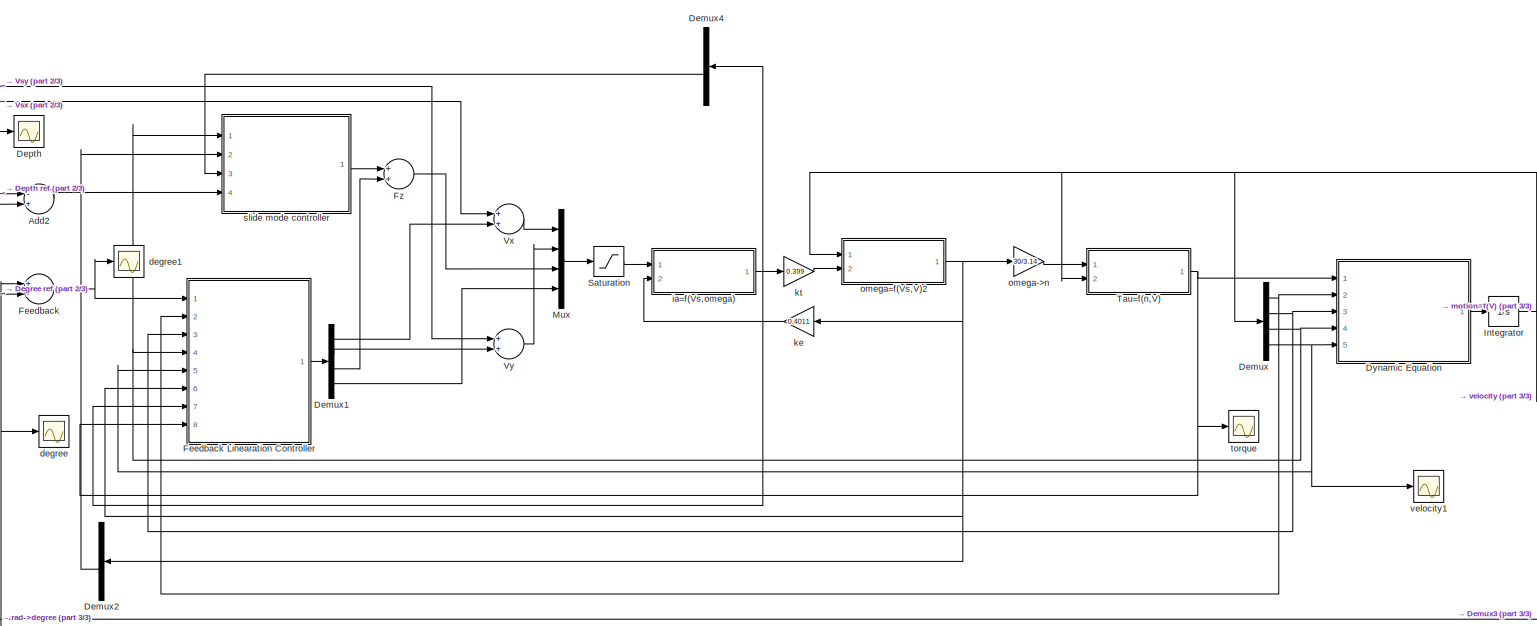
[diagram: root canvas - part 1/3, most of the canvas]
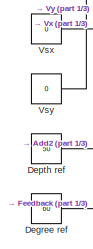
[diagram: root canvas - part 2/3, middle left region]
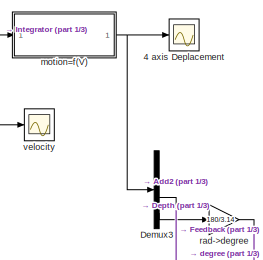
[diagram: root canvas - part 3/3, middle right region]
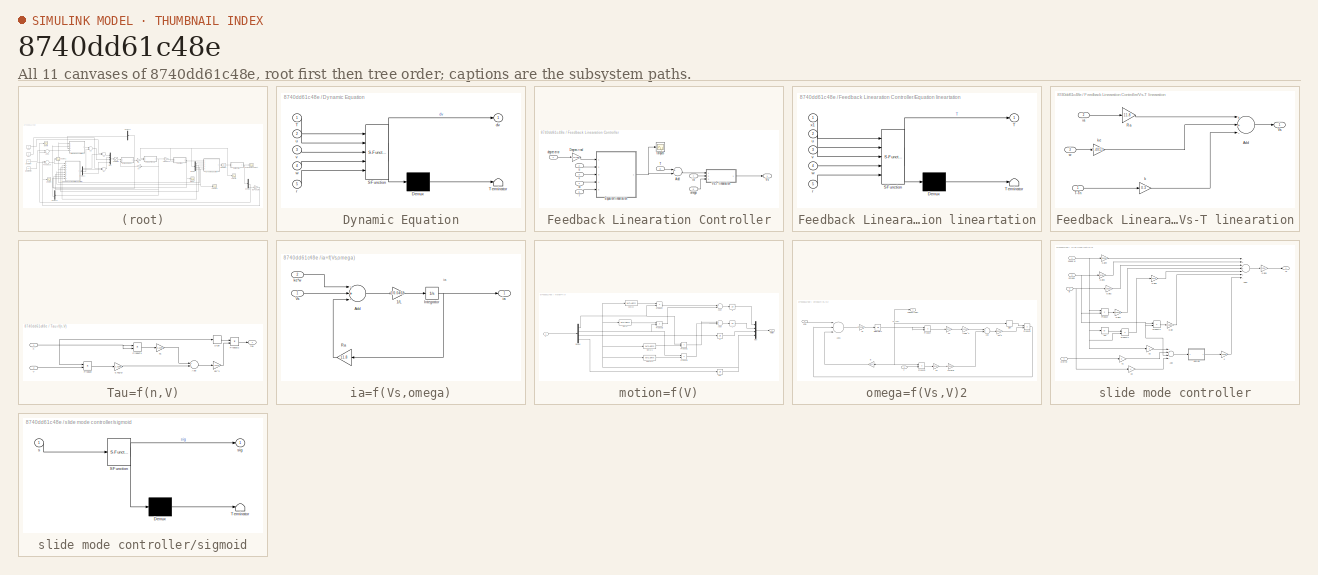
[diagram: thumbnail index - all 11 canvases of the model, root first then tree order]
MODEL slx_8740dd61c48e
KIND model
CONFIG AbsTol = auto
CONFIG FixedStep = auto
CONFIG MaxStep = auto
CONFIG MinStep = auto
CONFIG RelTol = 1e-3
CONFIG SampleTimeConstraint = Unconstrained
CONFIG Solver = VariableStepAuto
CONFIG SolverMode = Auto
CONFIG SolverName = VariableStepAuto
CONFIG StartTime = 0.0
CONFIG StopTime = 100
BLOCK [Scope] 4 axis Deplacement 
  Ports = [1]
  ScopeSpecificationString = Simulink.scopes.TimeScopeBlockCfg('CurrentConfiguration', extmgr.ConfigurationSet(extmgr.Configuration('Core','General UI',true),extmgr.Configuration('Core','Source UI',true),extmgr.Configuration('Sources','WiredSimulink',true,'DataLoggingVariableName','ScopeData2'),extmgr.Configuration('Visuals','Time Domain',true,'SerializedDisplays',{struct('MinYLimReal','-6.26643','MaxYLimReal','56.21813','YLa...<+1451ch>
BLOCK [Sum] Add2
  InputSameDT = off
  Inputs = -+
  OutDataTypeStr = Inherit: Inherit via internal rule
  Ports = [2, 1]
  SaturateOnIntegerOverflow = off
BLOCK [Constant] Degree ref
  Value = 60
BLOCK [Demux] Demux
  DisplayOption = bar
  Ports = [1, 4]
BLOCK [Demux] Demux1
  DisplayOption = bar
  Ports = [1, 4]
BLOCK [Demux] Demux2
  DisplayOption = bar
  Ports = [1, 4]
BLOCK [Demux] Demux3
  DisplayOption = bar
  Ports = [1, 4]
BLOCK [Demux] Demux4
  DisplayOption = bar
  Ports = [1, 4]
BLOCK [Scope] Depth
  Ports = [1]
  ScopeSpecificationString = Simulink.scopes.TimeScopeBlockCfg('CurrentConfiguration', extmgr.ConfigurationSet(extmgr.Configuration('Core','General UI',true),extmgr.Configuration('Core','Source UI',true),extmgr.Configuration('Sources','WiredSimulink',true,'DataLoggingVariableName','ScopeDataDepth','DataLogging',true,'DataLoggingSaveFormat','Array'),extmgr.Configuration('Visuals','Time Domain',true,'SerializedDisplays',{struct...<+1453ch>
BLOCK [Constant] Depth ref
  Value = 50
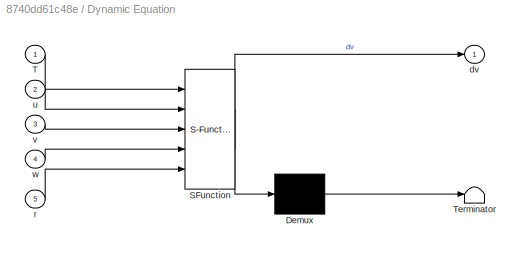
BLOCK [SubSystem] Dynamic Equation
  ErrorFcn = Stateflow.Translate.translate
  PermitHierarchicalResolution = ExplicitOnly
  Ports = [5, 1]
  RequestExecContextInheritance = off
  SFBlockType = MATLAB Function
  TreatAsAtomicUnit = on
  Variant = off
BLOCK [Demux] Dynamic Equation/ Demux 
  Outputs = 1
  Ports = [1, 1]
BLOCK [S-Function] Dynamic Equation/ SFunction 
  EnableBusSupport = on
  FunctionName = sf_sfun
  PortCounts = [5 2]
  Ports = [5, 2]
  SFunctionDeploymentMode = off
  Tag = Stateflow S-Function UUV_System 1
BLOCK [Terminator] Dynamic Equation/ Terminator 
BLOCK [Inport] Dynamic Equation/T
  IconDisplay = Port number
BLOCK [Outport] Dynamic Equation/dv
  IconDisplay = Port number
BLOCK [Inport] Dynamic Equation/r
  IconDisplay = Port number
  Port = 5
BLOCK [Inport] Dynamic Equation/u
  IconDisplay = Port number
  Port = 2
BLOCK [Inport] Dynamic Equation/v
  IconDisplay = Port number
  Port = 3
BLOCK [Inport] Dynamic Equation/w
  IconDisplay = Port number
  Port = 4
BLOCK [Sum] Feedback
  InputSameDT = off
  Inputs = +-
  OutDataTypeStr = Inherit: Inherit via internal rule
  Ports = [2, 1]
  SaturateOnIntegerOverflow = off
BLOCK [SubSystem] Feedback Linearation Controller
  Ports = [8, 1]
  RequestExecContextInheritance = off
  Variant = off
BLOCK [Sum] Feedback Linearation Controller/Add
  InputSameDT = off
  Inputs = +-
  OutDataTypeStr = Inherit: Inherit via internal rule
  Ports = [2, 1]
  SaturateOnIntegerOverflow = off
BLOCK [Gain] Feedback Linearation Controller/Degree->rad
  Gain = 3.14/180
  OutDataTypeStr = Inherit: Inherit via internal rule
  ParamDataTypeStr = Inherit: Inherit via internal rule
  SaturateOnIntegerOverflow = off
BLOCK [SubSystem] Feedback Linearation Controller/Equation lineartation
  ErrorFcn = Stateflow.Translate.translate
  PermitHierarchicalResolution = ExplicitOnly
  Ports = [5, 1]
  RequestExecContextInheritance = off
  SFBlockType = MATLAB Function
  TreatAsAtomicUnit = on
  Variant = off
BLOCK [Demux] Feedback Linearation Controller/Equation lineartation/ Demux 
  Outputs = 1
  Ports = [1, 1]
BLOCK [S-Function] Feedback Linearation Controller/Equation lineartation/ SFunction 
  EnableBusSupport = on
  FunctionName = sf_sfun
  PortCounts = [5 2]
  Ports = [5, 2]
  SFunctionDeploymentMode = off
  Tag = Stateflow S-Function UUV_System 3
BLOCK [Terminator] Feedback Linearation Controller/Equation lineartation/ Terminator 
BLOCK [Outport] Feedback Linearation Controller/Equation lineartation/T
  IconDisplay = Port number
BLOCK [Inport] Feedback Linearation Controller/Equation lineartation/r
  IconDisplay = Port number
  Port = 5
BLOCK [Inport] Feedback Linearation Controller/Equation lineartation/u
  IconDisplay = Port number
  Port = 2
BLOCK [Inport] Feedback Linearation Controller/Equation lineartation/v
  IconDisplay = Port number
  Port = 3
BLOCK [Inport] Feedback Linearation Controller/Equation lineartation/w
  IconDisplay = Port number
  Port = 4
BLOCK [Inport] Feedback Linearation Controller/Equation lineartation/x1
  IconDisplay = Port number
BLOCK [Inport] Feedback Linearation Controller/T
  IconDisplay = Port number
  Port = 8
BLOCK [Outport] Feedback Linearation Controller/Vs
  IconDisplay = Port number
BLOCK [SubSystem] Feedback Linearation Controller/Vs-T linearation
  Ports = [3, 1]
  RequestExecContextInheritance = off
  Variant = off
BLOCK [Sum] Feedback Linearation Controller/Vs-T linearation/Add
  InputSameDT = off
  Inputs = ++-
  OutDataTypeStr = Inherit: Inherit via internal rule
  Ports = [3, 1]
  SaturateOnIntegerOverflow = off
BLOCK [Gain] Feedback Linearation Controller/Vs-T linearation/Ra
  Gain = 11.8
  OutDataTypeStr = Inherit: Inherit via internal rule
  ParamDataTypeStr = Inherit: Inherit via internal rule
  SaturateOnIntegerOverflow = off
BLOCK [Inport] Feedback Linearation Controller/Vs-T linearation/T-Tn
  IconDisplay = Port number
BLOCK [Outport] Feedback Linearation Controller/Vs-T linearation/Vs
  IconDisplay = Port number
BLOCK [Inport] Feedback Linearation Controller/Vs-T linearation/ia
  IconDisplay = Port number
  Port = 2
BLOCK [Gain] Feedback Linearation Controller/Vs-T linearation/k
  Gain = 0.3
  OutDataTypeStr = Inherit: Inherit via internal rule
  ParamDataTypeStr = Inherit: Inherit via internal rule
  SaturateOnIntegerOverflow = off
BLOCK [Gain] Feedback Linearation Controller/Vs-T linearation/ke
  Gain = 0.4011
  OutDataTypeStr = Inherit: Inherit via internal rule
  ParamDataTypeStr = Inherit: Inherit via internal rule
  SaturateOnIntegerOverflow = off
BLOCK [Inport] Feedback Linearation Controller/Vs-T linearation/w
  IconDisplay = Port number
  Port = 3
BLOCK [Inport] Feedback Linearation Controller/degree error
  IconDisplay = Port number
BLOCK [Inport] Feedback Linearation Controller/ia
  IconDisplay = Port number
  Port = 7
BLOCK [Inport] Feedback Linearation Controller/omega
  IconDisplay = Port number
  Port = 6
BLOCK [Inport] Feedback Linearation Controller/r
  IconDisplay = Port number
  Port = 5
BLOCK [Scope] Feedback Linearation Controller/torque3
  Ports = [1]
  ScopeSpecificationString = Simulink.scopes.TimeScopeBlockCfg('CurrentConfiguration', extmgr.ConfigurationSet(extmgr.Configuration('Core','General UI',true),extmgr.Configuration('Core','Source UI',true),extmgr.Configuration('Sources','WiredSimulink',true,'DataLoggingVariableName','ScopeData2'),extmgr.Configuration('Visuals','Time Domain',true,'SerializedDisplays',{struct('MinYLimReal','-1.60366','MaxYLimReal','9.58528','YLab...<+1506ch>
BLOCK [Inport] Feedback Linearation Controller/u
  IconDisplay = Port number
  Port = 2
BLOCK [Inport] Feedback Linearation Controller/v
  IconDisplay = Port number
  Port = 3
BLOCK [Inport] Feedback Linearation Controller/w
  IconDisplay = Port number
  Port = 4
BLOCK [Sum] Fz
  InputSameDT = off
  OutDataTypeStr = Inherit: Inherit via internal rule
  Ports = [2, 1]
  SaturateOnIntegerOverflow = off
BLOCK [Integrator] Integrator
  Ports = [1, 1]
BLOCK [Mux] Mux
  DisplayOption = bar
  Ports = [4, 1]
BLOCK [Saturate] Saturation
  InputPortMap = u0
  LowerLimit = -100
  Ports = [1, 1]
  UpperLimit = 100
BLOCK [SubSystem] Tau=f(n,V)
  Ports = [2, 1]
  RequestExecContextInheritance = off
  Variant = off
BLOCK [Gain] Tau=f(n,V)/0.7a2//D
  Gain = -1.0366
  OutDataTypeStr = Inherit: Inherit via internal rule
  ParamDataTypeStr = Inherit: Inherit via internal rule
  SaturateOnIntegerOverflow = off
BLOCK [Sum] Tau=f(n,V)/Add
  InputSameDT = off
  OutDataTypeStr = Inherit: Inherit via internal rule
  Ports = [2, 1]
  SaturateOnIntegerOverflow = off
BLOCK [Product] Tau=f(n,V)/Product
  InputSameDT = off
  OutDataTypeStr = Inherit: Inherit via internal rule
  Ports = [2, 1]
  RndMeth = Floor
  SaturateOnIntegerOverflow = off
BLOCK [Product] Tau=f(n,V)/Product1
  InputSameDT = off
  OutDataTypeStr = Inherit: Inherit via internal rule
  Ports = [2, 1]
  RndMeth = Floor
  SaturateOnIntegerOverflow = off
BLOCK [Product] Tau=f(n,V)/Product2
  InputSameDT = off
  OutDataTypeStr = Inherit: Inherit via internal rule
  Ports = [2, 1]
  RndMeth = Floor
  SaturateOnIntegerOverflow = off
BLOCK [Signum] Tau=f(n,V)/Sign
BLOCK [Inport] Tau=f(n,V)/V
  IconDisplay = Port number
  Port = 2
BLOCK [Gain] Tau=f(n,V)/a1
  Gain = 0.2299
  OutDataTypeStr = Inherit: Inherit via internal rule
  ParamDataTypeStr = Inherit: Inherit via internal rule
  SaturateOnIntegerOverflow = off
BLOCK [Inport] Tau=f(n,V)/n
  IconDisplay = Port number
BLOCK [Gain] Tau=f(n,V)/pD^4
  Gain = 0.5471
  OutDataTypeStr = Inherit: Inherit via internal rule
  ParamDataTypeStr = Inherit: Inherit via internal rule
  SaturateOnIntegerOverflow = off
BLOCK [Outport] Tau=f(n,V)/tau
  IconDisplay = Port number
BLOCK [Constant] Vsx
  Value = 0
BLOCK [Constant] Vsy
  Value = 0
BLOCK [Sum] Vx
  InputSameDT = off
  OutDataTypeStr = Inherit: Inherit via internal rule
  Ports = [2, 1]
  SaturateOnIntegerOverflow = off
BLOCK [Sum] Vy
  InputSameDT = off
  OutDataTypeStr = Inherit: Inherit via internal rule
  Ports = [2, 1]
  SaturateOnIntegerOverflow = off
BLOCK [Scope] degree
  Ports = [1]
  ScopeSpecificationString = Simulink.scopes.TimeScopeBlockCfg('CurrentConfiguration', extmgr.ConfigurationSet(extmgr.Configuration('Core','General UI',true),extmgr.Configuration('Core','Source UI',true),extmgr.Configuration('Sources','WiredSimulink',true,'DataLoggingVariableName','ScopeData1','DataLogging',true,'DataLoggingSaveFormat','Array'),extmgr.Configuration('Visuals','Time Domain',true,'SerializedDisplays',{struct('Mi...<+1454ch>
BLOCK [Scope] degree1
  Ports = [1]
  ScopeSpecificationString = Simulink.scopes.TimeScopeBlockCfg('CurrentConfiguration', extmgr.ConfigurationSet(extmgr.Configuration('Core','General UI',true),extmgr.Configuration('Core','Source UI',true),extmgr.Configuration('Sources','WiredSimulink',true,'DataLoggingVariableName','x1','DataLogging',true,'DataLoggingSaveFormat','Array'),extmgr.Configuration('Visuals','Time Domain',true,'SerializedDisplays',{struct('MinYLimRea...<+1435ch>
BLOCK [SubSystem] ia=f(Vs,omega)
  Ports = [2, 1]
  RequestExecContextInheritance = off
  Variant = off
BLOCK [Gain] ia=f(Vs,omega)/1//L
  Gain = 1/0.0468
  OutDataTypeStr = Inherit: Inherit via internal rule
  ParamDataTypeStr = Inherit: Inherit via internal rule
  SaturateOnIntegerOverflow = off
BLOCK [Sum] ia=f(Vs,omega)/Add
  InputSameDT = off
  Inputs = -+-
  OutDataTypeStr = Inherit: Inherit via internal rule
  Ports = [3, 1]
  SaturateOnIntegerOverflow = off
BLOCK [Integrator] ia=f(Vs,omega)/Integrator
  Ports = [1, 1]
BLOCK [Gain] ia=f(Vs,omega)/Ra
  Gain = 11.8
  OutDataTypeStr = Inherit: Inherit via internal rule
  ParamDataTypeStr = Inherit: Inherit via internal rule
  SaturateOnIntegerOverflow = off
BLOCK [Inport] ia=f(Vs,omega)/Vs
  IconDisplay = Port number
BLOCK [Outport] ia=f(Vs,omega)/ia
  IconDisplay = Port number
BLOCK [Inport] ia=f(Vs,omega)/ke*w
  IconDisplay = Port number
  Port = 2
BLOCK [Gain] ke
  Gain = 0.4011
  OutDataTypeStr = Inherit: Inherit via internal rule
  ParamDataTypeStr = Inherit: Inherit via internal rule
  SaturateOnIntegerOverflow = off
BLOCK [Gain] kt
  Gain = 0.399
  OutDataTypeStr = Inherit: Inherit via internal rule
  ParamDataTypeStr = Inherit: Inherit via internal rule
  SaturateOnIntegerOverflow = off
BLOCK [SubSystem] motion=f(V)
  Ports = [1, 1]
  RequestExecContextInheritance = off
  Variant = off
BLOCK [Demux] motion=f(V)/Demux
  DisplayOption = bar
  Ports = [1, 4]
BLOCK [Mux] motion=f(V)/Mux
  DisplayOption = bar
  Ports = [4, 1]
BLOCK [Product] motion=f(V)/Product
  InputSameDT = off
  OutDataTypeStr = Inherit: Inherit via internal rule
  Ports = [2, 1]
  RndMeth = Floor
  SaturateOnIntegerOverflow = off
BLOCK [Product] motion=f(V)/Product1
  InputSameDT = off
  OutDataTypeStr = Inherit: Inherit via internal rule
  Ports = [2, 1]
  RndMeth = Floor
  SaturateOnIntegerOverflow = off
BLOCK [Product] motion=f(V)/Product2
  InputSameDT = off
  OutDataTypeStr = Inherit: Inherit via internal rule
  Ports = [2, 1]
  RndMeth = Floor
  SaturateOnIntegerOverflow = off
BLOCK [Product] motion=f(V)/Product3
  InputSameDT = off
  OutDataTypeStr = Inherit: Inherit via internal rule
  Ports = [2, 1]
  RndMeth = Floor
  SaturateOnIntegerOverflow = off
BLOCK [Inport] motion=f(V)/V
  IconDisplay = Port number
BLOCK [MATLABFcn] motion=f(V)/cos(u)
  MATLABFcn = cos(u)
  Ports = [1, 1]
BLOCK [MATLABFcn] motion=f(V)/cos(u)1
  MATLABFcn = cos(u)
  Ports = [1, 1]
BLOCK [Outport] motion=f(V)/motion
  IconDisplay = Port number
BLOCK [Integrator] motion=f(V)/phi
  Ports = [1, 1]
BLOCK [MATLABFcn] motion=f(V)/sin(u)
  MATLABFcn = sin(u)
  Ports = [1, 1]
BLOCK [MATLABFcn] motion=f(V)/sin(u)1
  MATLABFcn = sin(u)
  Ports = [1, 1]
BLOCK [Integrator] motion=f(V)/x
  Ports = [1, 1]
BLOCK [Sum] motion=f(V)/xdot
  InputSameDT = off
  Inputs = +-
  OutDataTypeStr = Inherit: Inherit via internal rule
  Ports = [2, 1]
  SaturateOnIntegerOverflow = off
BLOCK [Integrator] motion=f(V)/y
  Ports = [1, 1]
BLOCK [Sum] motion=f(V)/ydot
  InputSameDT = off
  OutDataTypeStr = Inherit: Inherit via internal rule
  Ports = [2, 1]
  SaturateOnIntegerOverflow = off
BLOCK [Integrator] motion=f(V)/z
  Ports = [1, 1]
BLOCK [Gain] omega->n
  Gain = 30/3.14
  OutDataTypeStr = Inherit: Inherit via internal rule
  ParamDataTypeStr = Inherit: Inherit via internal rule
  SaturateOnIntegerOverflow = off
BLOCK [SubSystem] omega=f(Vs,V)2
  Ports = [2, 1]
  RequestExecContextInheritance = off
  Variant = off
BLOCK [Gain] omega=f(Vs,V)2/(30//pi)^2
  Gain = 91.2235
  OutDataTypeStr = Inherit: Inherit via internal rule
  ParamDataTypeStr = Inherit: Inherit via internal rule
  SaturateOnIntegerOverflow = off
BLOCK [Gain] omega=f(Vs,V)2/1//J
  Gain = 10000/9.275
  OutDataTypeStr = Inherit: Inherit via internal rule
  ParamDataTypeStr = Inherit: Inherit via internal rule
  SaturateOnIntegerOverflow = off
BLOCK [Gain] omega=f(Vs,V)2/21//(pi*D)
  Gain = 43.9993
  OutDataTypeStr = Inherit: Inherit via internal rule
  ParamDataTypeStr = Inherit: Inherit via internal rule
  SaturateOnIntegerOverflow = off
BLOCK [Sum] omega=f(Vs,V)2/Add
  InputSameDT = off
  OutDataTypeStr = Inherit: Inherit via internal rule
  Ports = [2, 1]
  SaturateOnIntegerOverflow = off
BLOCK [Sum] omega=f(Vs,V)2/Add1
  InputSameDT = off
  Inputs = +--
  OutDataTypeStr = Inherit: Inherit via internal rule
  Ports = [3, 1]
  SaturateOnIntegerOverflow = off
BLOCK [Gain] omega=f(Vs,V)2/B
  Gain = 0.001
  OutDataTypeStr = Inherit: Inherit via internal rule
  ParamDataTypeStr = Inherit: Inherit via internal rule
  SaturateOnIntegerOverflow = off
BLOCK [Integrator] omega=f(Vs,V)2/Integrator1
  Ports = [1, 1]
BLOCK [Product] omega=f(Vs,V)2/Product
  InputSameDT = off
  OutDataTypeStr = Inherit: Inherit via internal rule
  Ports = [2, 1]
  RndMeth = Floor
  SaturateOnIntegerOverflow = off
BLOCK [Product] omega=f(Vs,V)2/Product1
  InputSameDT = off
  OutDataTypeStr = Inherit: Inherit via internal rule
  Ports = [2, 1]
  RndMeth = Floor
  SaturateOnIntegerOverflow = off
BLOCK [Product] omega=f(Vs,V)2/Product2
  InputSameDT = off
  OutDataTypeStr = Inherit: Inherit via internal rule
  Ports = [2, 1]
  RndMeth = Floor
  SaturateOnIntegerOverflow = off
BLOCK [Signum] omega=f(Vs,V)2/Sign
BLOCK [Inport] omega=f(Vs,V)2/V
  IconDisplay = Port number
BLOCK [Gain] omega=f(Vs,V)2/a3
  Gain = 0.0271
  OutDataTypeStr = Inherit: Inherit via internal rule
  ParamDataTypeStr = Inherit: Inherit via internal rule
  SaturateOnIntegerOverflow = off
BLOCK [Gain] omega=f(Vs,V)2/a4
  Gain = -0.0157
  OutDataTypeStr = Inherit: Inherit via internal rule
  ParamDataTypeStr = Inherit: Inherit via internal rule
  SaturateOnIntegerOverflow = off
BLOCK [Inport] omega=f(Vs,V)2/kt*ia
  IconDisplay = Port number
  Port = 2
BLOCK [Outport] omega=f(Vs,V)2/omega (rad//s)
  IconDisplay = Port number
BLOCK [Gain] omega=f(Vs,V)2/pD^5
  Gain = 0.0832
  OutDataTypeStr = Inherit: Inherit via internal rule
  ParamDataTypeStr = Inherit: Inherit via internal rule
  SaturateOnIntegerOverflow = off
BLOCK [Gain] rad->degree
  Gain = 180/3.14
  OutDataTypeStr = Inherit: Inherit via internal rule
  ParamDataTypeStr = Inherit: Inherit via internal rule
  SaturateOnIntegerOverflow = off
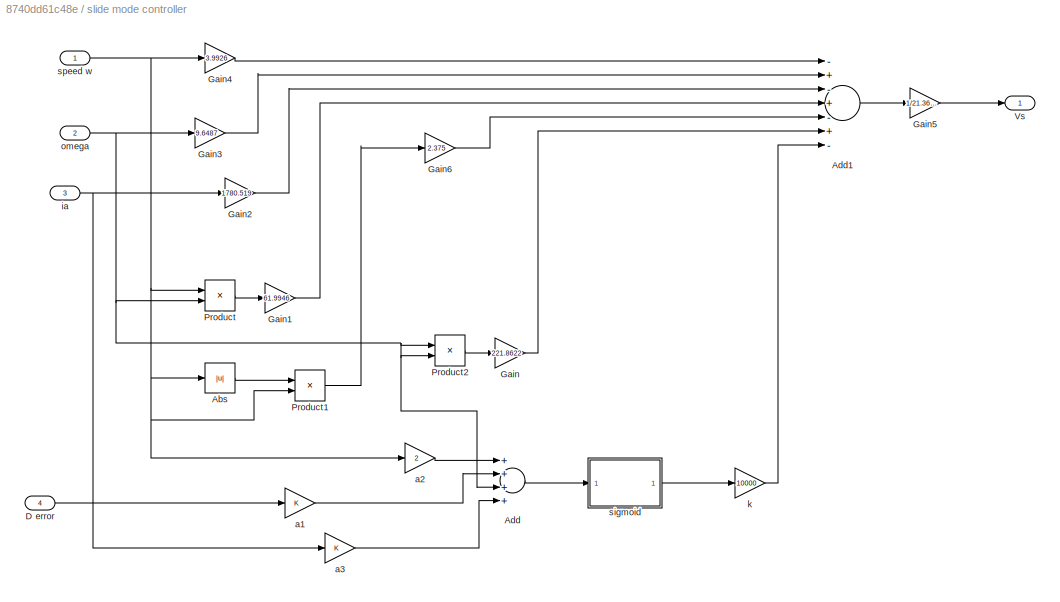
BLOCK [SubSystem] slide mode controller
  Ports = [4, 1]
  RequestExecContextInheritance = off
  Variant = off
BLOCK [Abs] slide mode controller/Abs
  SaturateOnIntegerOverflow = off
BLOCK [Sum] slide mode controller/Add
  InputSameDT = off
  Inputs = ++++
  OutDataTypeStr = Inherit: Inherit via internal rule
  Ports = [4, 1]
  SaturateOnIntegerOverflow = off
BLOCK [Sum] slide mode controller/Add1
  InputSameDT = off
  Inputs = -+-+-+-
  OutDataTypeStr = Inherit: Inherit via internal rule
  Ports = [7, 1]
  SaturateOnIntegerOverflow = off
BLOCK [Inport] slide mode controller/D error
  IconDisplay = Port number
  Port = 4
BLOCK [Gain] slide mode controller/Gain
  Gain = 221.8622
  OutDataTypeStr = Inherit: Inherit via internal rule
  ParamDataTypeStr = Inherit: Inherit via internal rule
  SaturateOnIntegerOverflow = off
BLOCK [Gain] slide mode controller/Gain1
  Gain = 61.9946
  OutDataTypeStr = Inherit: Inherit via internal rule
  ParamDataTypeStr = Inherit: Inherit via internal rule
  SaturateOnIntegerOverflow = off
BLOCK [Gain] slide mode controller/Gain2
  Gain = 1780.519
  OutDataTypeStr = Inherit: Inherit via internal rule
  ParamDataTypeStr = Inherit: Inherit via internal rule
  SaturateOnIntegerOverflow = off
BLOCK [Gain] slide mode controller/Gain3
  Gain = 9.6487
  OutDataTypeStr = Inherit: Inherit via internal rule
  ParamDataTypeStr = Inherit: Inherit via internal rule
  SaturateOnIntegerOverflow = off
BLOCK [Gain] slide mode controller/Gain4
  Gain = 3.9926
  OutDataTypeStr = Inherit: Inherit via internal rule
  ParamDataTypeStr = Inherit: Inherit via internal rule
  SaturateOnIntegerOverflow = off
BLOCK [Gain] slide mode controller/Gain5
  Gain = 1/21.3675
  OutDataTypeStr = Inherit: Inherit via internal rule
  ParamDataTypeStr = Inherit: Inherit via internal rule
  SaturateOnIntegerOverflow = off
BLOCK [Gain] slide mode controller/Gain6
  Gain = 2.375
  OutDataTypeStr = Inherit: Inherit via internal rule
  ParamDataTypeStr = Inherit: Inherit via internal rule
  SaturateOnIntegerOverflow = off
BLOCK [Product] slide mode controller/Product
  InputSameDT = off
  OutDataTypeStr = Inherit: Inherit via internal rule
  Ports = [2, 1]
  RndMeth = Floor
  SaturateOnIntegerOverflow = off
BLOCK [Product] slide mode controller/Product1
  InputSameDT = off
  OutDataTypeStr = Inherit: Inherit via internal rule
  Ports = [2, 1]
  RndMeth = Floor
  SaturateOnIntegerOverflow = off
BLOCK [Product] slide mode controller/Product2
  InputSameDT = off
  OutDataTypeStr = Inherit: Inherit via internal rule
  Ports = [2, 1]
  RndMeth = Floor
  SaturateOnIntegerOverflow = off
BLOCK [Outport] slide mode controller/Vs
  IconDisplay = Port number
BLOCK [Gain] slide mode controller/a1
  OutDataTypeStr = Inherit: Inherit via internal rule
  ParamDataTypeStr = Inherit: Inherit via internal rule
  SaturateOnIntegerOverflow = off
BLOCK [Gain] slide mode controller/a2
  Gain = 2
  OutDataTypeStr = Inherit: Inherit via internal rule
  ParamDataTypeStr = Inherit: Inherit via internal rule
  SaturateOnIntegerOverflow = off
BLOCK [Gain] slide mode controller/a3
  OutDataTypeStr = Inherit: Inherit via internal rule
  ParamDataTypeStr = Inherit: Inherit via internal rule
  SaturateOnIntegerOverflow = off
BLOCK [Inport] slide mode controller/ia
  IconDisplay = Port number
  Port = 3
BLOCK [Gain] slide mode controller/k
  Gain = 10000
  OutDataTypeStr = Inherit: Inherit via internal rule
  ParamDataTypeStr = Inherit: Inherit via internal rule
  SaturateOnIntegerOverflow = off
BLOCK [Inport] slide mode controller/omega
  IconDisplay = Port number
  Port = 2
BLOCK [SubSystem] slide mode controller/sigmoid
  ErrorFcn = Stateflow.Translate.translate
  PermitHierarchicalResolution = ExplicitOnly
  Ports = [1, 1]
  RequestExecContextInheritance = off
  SFBlockType = MATLAB Function
  TreatAsAtomicUnit = on
  Variant = off
BLOCK [Demux] slide mode controller/sigmoid/ Demux 
  Outputs = 1
  Ports = [1, 1]
BLOCK [S-Function] slide mode controller/sigmoid/ SFunction 
  EnableBusSupport = on
  FunctionName = sf_sfun
  PortCounts = [1 2]
  Ports = [1, 2]
  SFunctionDeploymentMode = off
  Tag = Stateflow S-Function UUV_System 2
BLOCK [Terminator] slide mode controller/sigmoid/ Terminator 
BLOCK [Inport] slide mode controller/sigmoid/s
  IconDisplay = Port number
BLOCK [Outport] slide mode controller/sigmoid/sig
  IconDisplay = Port number
BLOCK [Inport] slide mode controller/speed w
  IconDisplay = Port number
BLOCK [Scope] torque
  Ports = [1]
  ScopeSpecificationString = Simulink.scopes.TimeScopeBlockCfg('CurrentConfiguration', extmgr.ConfigurationSet(extmgr.Configuration('Core','General UI',true),extmgr.Configuration('Core','Source UI',true),extmgr.Configuration('Sources','WiredSimulink',true),extmgr.Configuration('Visuals','Time Domain',true,'SerializedDisplays',{struct('MinYLimReal','-1.00000','MaxYLimReal','1.00000','YLabelReal','','MinYLimMag','0.00000','MaxY...<+1404ch>
BLOCK [Scope] velocity
  Ports = [1]
  ScopeSpecificationString = Simulink.scopes.TimeScopeBlockCfg('CurrentConfiguration', extmgr.ConfigurationSet(extmgr.Configuration('Core','General UI',true),extmgr.Configuration('Core','Source UI',true),extmgr.Configuration('Sources','WiredSimulink',true,'DataLoggingVariableName','ScopeData1'),extmgr.Configuration('Visuals','Time Domain',true,'SerializedDisplays',{struct('MinYLimReal','-0.0038','MaxYLimReal','0.00592','YLabe...<+1403ch>
BLOCK [Scope] velocity1
  Ports = [1]
  ScopeSpecificationString = Simulink.scopes.TimeScopeBlockCfg('CurrentConfiguration', extmgr.ConfigurationSet(extmgr.Configuration('Core','General UI',true),extmgr.Configuration('Core','Source UI',true),extmgr.Configuration('Sources','WiredSimulink',true,'DataLoggingVariableName','x2','DataLogging',true,'DataLoggingSaveFormat','Array'),extmgr.Configuration('Visuals','Time Domain',true,'SerializedDisplays',{struct('MinYLimRea...<+1453ch>
ANNOTATION ia=f(Vs,omega): ia
ANNOTATION omega=f(Vs,V)2: w (rad/s)
LINE Add2:1 -> slide mode controller:4
LINE Degree ref:1 -> Feedback:2
LINE Demux1:1 -> Vx:2
LINE Demux1:2 -> Vy:2
LINE Demux1:3 -> Fz:2
LINE Demux1:4 -> Mux:4
LINE Demux2:3 -> slide mode controller:2
NET Demux3:3 -> Add2:2, Depth:1
LINE Demux3:4 -> rad->degree:1
LINE Demux4:3 -> slide mode controller:3
NET Demux:1 -> Dynamic Equation:2, Feedback Linearation Controller:2
NET Demux:2 -> Dynamic Equation:3, Feedback Linearation Controller:3
NET Demux:3 -> Dynamic Equation:4, Feedback Linearation Controller:4, slide mode controller:1
NET Demux:4 -> Dynamic Equation:5, Feedback Linearation Controller:5, velocity1:1
LINE Depth ref:1 -> Add2:1
LINE Dynamic Equation:1 -> Integrator:1
LINE Feedback Linearation Controller/Add:1 -> Feedback Linearation Controller/Vs-T linearation:1
LINE Feedback Linearation Controller/Degree->rad:1 -> Feedback Linearation Controller/Equation lineartation:1
NET Feedback Linearation Controller/Equation lineartation:1 -> Feedback Linearation Controller/Add:2, Feedback Linearation Controller/torque3:1
LINE Feedback Linearation Controller/T:1 -> Feedback Linearation Controller/Add:1
LINE Feedback Linearation Controller/Vs-T linearation/Add:1 -> Feedback Linearation Controller/Vs-T linearation/Vs:1
LINE Feedback Linearation Controller/Vs-T linearation/Ra:1 -> Feedback Linearation Controller/Vs-T linearation/Add:1
LINE Feedback Linearation Controller/Vs-T linearation/T-Tn:1 -> Feedback Linearation Controller/Vs-T linearation/k:1
LINE Feedback Linearation Controller/Vs-T linearation/ia:1 -> Feedback Linearation Controller/Vs-T linearation/Ra:1
LINE Feedback Linearation Controller/Vs-T linearation/k:1 -> Feedback Linearation Controller/Vs-T linearation/Add:3
LINE Feedback Linearation Controller/Vs-T linearation/ke:1 -> Feedback Linearation Controller/Vs-T linearation/Add:2
LINE Feedback Linearation Controller/Vs-T linearation/w:1 -> Feedback Linearation Controller/Vs-T linearation/ke:1
LINE Feedback Linearation Controller/Vs-T linearation:1 -> Feedback Linearation Controller/Vs:1
LINE Feedback Linearation Controller/degree error:1 -> Feedback Linearation Controller/Degree->rad:1
LINE Feedback Linearation Controller/ia:1 -> Feedback Linearation Controller/Vs-T linearation:2
LINE Feedback Linearation Controller/omega:1 -> Feedback Linearation Controller/Vs-T linearation:3
LINE Feedback Linearation Controller/r:1 -> Feedback Linearation Controller/Equation lineartation:5
LINE Feedback Linearation Controller/u:1 -> Feedback Linearation Controller/Equation lineartation:2
LINE Feedback Linearation Controller/v:1 -> Feedback Linearation Controller/Equation lineartation:3
LINE Feedback Linearation Controller/w:1 -> Feedback Linearation Controller/Equation lineartation:4
LINE Feedback Linearation Controller:1 -> Demux1:1
NET Feedback:1 -> Feedback Linearation Controller:1, degree1:1
LINE Fz:1 -> Mux:3
NET Integrator:1 -> Demux:1, Tau=f(n,V):2, motion=f(V):1, omega=f(Vs,V)2:1, velocity:1
LINE Mux:1 -> Saturation:1
LINE Saturation:1 -> ia=f(Vs,omega):1
LINE Tau=f(n,V)/0.7a2//D:1 -> Tau=f(n,V)/Add:2
LINE Tau=f(n,V)/Add:1 -> Tau=f(n,V)/pD^4:1
LINE Tau=f(n,V)/Product1:1 -> Tau=f(n,V)/a1:1
LINE Tau=f(n,V)/Product2:1 -> Tau=f(n,V)/tau:1
LINE Tau=f(n,V)/Product:1 -> Tau=f(n,V)/0.7a2//D:1
LINE Tau=f(n,V)/Sign:1 -> Tau=f(n,V)/Product2:1
LINE Tau=f(n,V)/V:1 -> Tau=f(n,V)/Product:2
LINE Tau=f(n,V)/a1:1 -> Tau=f(n,V)/Add:1
NET Tau=f(n,V)/n:1 -> Tau=f(n,V)/Product1:1, Tau=f(n,V)/Product1:2, Tau=f(n,V)/Product:1, Tau=f(n,V)/Sign:1
LINE Tau=f(n,V)/pD^4:1 -> Tau=f(n,V)/Product2:2
NET Tau=f(n,V):1 -> Dynamic Equation:1, Feedback Linearation Controller:8, torque:1
LINE Vsx:1 -> Vx:1
LINE Vsy:1 -> Vy:1
LINE Vx:1 -> Mux:1
LINE Vy:1 -> Mux:2
LINE ia=f(Vs,omega)/1//L:1 -> ia=f(Vs,omega)/Integrator:1
LINE ia=f(Vs,omega)/Add:1 -> ia=f(Vs,omega)/1//L:1
NET ia=f(Vs,omega)/Integrator:1 -> ia=f(Vs,omega)/Ra:1, ia=f(Vs,omega)/ia:1
LINE ia=f(Vs,omega)/Ra:1 -> ia=f(Vs,omega)/Add:3
LINE ia=f(Vs,omega)/Vs:1 -> ia=f(Vs,omega)/Add:2
LINE ia=f(Vs,omega)/ke*w:1 -> ia=f(Vs,omega)/Add:1
NET ia=f(Vs,omega):1 -> Demux4:1, Feedback Linearation Controller:7, kt:1
LINE ke:1 -> ia=f(Vs,omega):2
LINE kt:1 -> omega=f(Vs,V)2:2
NET motion=f(V)/Demux:1 -> motion=f(V)/Product1:1, motion=f(V)/Product:2
NET motion=f(V)/Demux:2 -> motion=f(V)/Product2:2, motion=f(V)/Product3:1
LINE motion=f(V)/Demux:3 -> motion=f(V)/z:1
LINE motion=f(V)/Demux:4 -> motion=f(V)/phi:1
LINE motion=f(V)/Mux:1 -> motion=f(V)/motion:1
LINE motion=f(V)/Product1:1 -> motion=f(V)/ydot:1
LINE motion=f(V)/Product2:1 -> motion=f(V)/xdot:2
LINE motion=f(V)/Product3:1 -> motion=f(V)/ydot:2
LINE motion=f(V)/Product:1 -> motion=f(V)/xdot:1
LINE motion=f(V)/V:1 -> motion=f(V)/Demux:1
LINE motion=f(V)/cos(u)1:1 -> motion=f(V)/Product3:2
LINE motion=f(V)/cos(u):1 -> motion=f(V)/Product:1
NET motion=f(V)/phi:1 -> motion=f(V)/Mux:4, motion=f(V)/cos(u)1:1, motion=f(V)/cos(u):1, motion=f(V)/sin(u)1:1, motion=f(V)/sin(u):1
LINE motion=f(V)/sin(u)1:1 -> motion=f(V)/Product1:2
LINE motion=f(V)/sin(u):1 -> motion=f(V)/Product2:1
LINE motion=f(V)/x:1 -> motion=f(V)/Mux:1
LINE motion=f(V)/xdot:1 -> motion=f(V)/x:1
LINE motion=f(V)/y:1 -> motion=f(V)/Mux:2
LINE motion=f(V)/ydot:1 -> motion=f(V)/y:1
LINE motion=f(V)/z:1 -> motion=f(V)/Mux:3
NET motion=f(V):1 -> 4 axis Deplacement :1, Demux3:1
LINE omega->n:1 -> Tau=f(n,V):1
LINE omega=f(Vs,V)2/(30//pi)^2:1 -> omega=f(Vs,V)2/Add:1
LINE omega=f(Vs,V)2/1//J:1 -> omega=f(Vs,V)2/Integrator1:1
LINE omega=f(Vs,V)2/21//(pi*D):1 -> omega=f(Vs,V)2/Add:2
LINE omega=f(Vs,V)2/Add1:1 -> omega=f(Vs,V)2/1//J:1
LINE omega=f(Vs,V)2/Add:1 -> omega=f(Vs,V)2/pD^5:1
LINE omega=f(Vs,V)2/B:1 -> omega=f(Vs,V)2/Add1:3
NET omega=f(Vs,V)2/Integrator1:1 -> omega=f(Vs,V)2/B:1, omega=f(Vs,V)2/Product1:1, omega=f(Vs,V)2/Product:1, omega=f(Vs,V)2/Product:2, omega=f(Vs,V)2/Sign:1, omega=f(Vs,V)2/omega (rad//s):1
LINE omega=f(Vs,V)2/Product1:1 -> omega=f(Vs,V)2/a4:1
LINE omega=f(Vs,V)2/Product2:1 -> omega=f(Vs,V)2/Add1:2
LINE omega=f(Vs,V)2/Product:1 -> omega=f(Vs,V)2/a3:1
LINE omega=f(Vs,V)2/Sign:1 -> omega=f(Vs,V)2/Product2:1
LINE omega=f(Vs,V)2/V:1 -> omega=f(Vs,V)2/Product1:2
LINE omega=f(Vs,V)2/a3:1 -> omega=f(Vs,V)2/(30//pi)^2:1
LINE omega=f(Vs,V)2/a4:1 -> omega=f(Vs,V)2/21//(pi*D):1
LINE omega=f(Vs,V)2/kt*ia:1 -> omega=f(Vs,V)2/Add1:1
LINE omega=f(Vs,V)2/pD^5:1 -> omega=f(Vs,V)2/Product2:2
NET omega=f(Vs,V)2:1 -> Demux2:1, Feedback Linearation Controller:6, ke:1, omega->n:1
NET rad->degree:1 -> Feedback:1, degree:1
LINE slide mode controller/Abs:1 -> slide mode controller/Product1:1
LINE slide mode controller/Add1:1 -> slide mode controller/Gain5:1
LINE slide mode controller/Add:1 -> slide mode controller/sigmoid:1
LINE slide mode controller/D error:1 -> slide mode controller/a1:1
LINE slide mode controller/Gain1:1 -> slide mode controller/Add1:4
LINE slide mode controller/Gain2:1 -> slide mode controller/Add1:3
LINE slide mode controller/Gain3:1 -> slide mode controller/Add1:2
LINE slide mode controller/Gain4:1 -> slide mode controller/Add1:1
LINE slide mode controller/Gain5:1 -> slide mode controller/Vs:1
LINE slide mode controller/Gain6:1 -> slide mode controller/Add1:5
LINE slide mode controller/Gain:1 -> slide mode controller/Add1:6
LINE slide mode controller/Product1:1 -> slide mode controller/Gain6:1
LINE slide mode controller/Product2:1 -> slide mode controller/Gain:1
LINE slide mode controller/Product:1 -> slide mode controller/Gain1:1
LINE slide mode controller/a1:1 -> slide mode controller/Add:2
LINE slide mode controller/a2:1 -> slide mode controller/Add:1
LINE slide mode controller/a3:1 -> slide mode controller/Add:4
NET slide mode controller/ia:1 -> slide mode controller/Gain2:1, slide mode controller/a3:1
LINE slide mode controller/k:1 -> slide mode controller/Add1:7
NET slide mode controller/omega:1 -> slide mode controller/Add:3, slide mode controller/Gain3:1, slide mode controller/Product2:1, slide mode controller/Product2:2, slide mode controller/Product:2
LINE slide mode controller/sigmoid:1 -> slide mode controller/k:1
NET slide mode controller/speed w:1 -> slide mode controller/Abs:1, slide mode controller/Gain4:1, slide mode controller/Product1:2, slide mode controller/Product:1, slide mode controller/a2:1
LINE slide mode controller:1 -> Fz:1
note: NET lines group one-source signal fan-out (src -> all destinations, sorted); 1:1 wires keep LINE
CHART Dynamic Equation states=1 transitions=1
  STATE_LABEL 'eML_blk_kernel()'
  STATE_LABEL 'SCRIPT:\nfunction dv = fcn(T,u,v,w,r)\n%#codegen\n\n%%velocity\nvel=[u;v;w;r];\n%% propeller\nD=0.152;\n\n%% motor\nJ=9.275*1e-4;\nke=0.4011;\nRa=11.8;\nL=0.0468;\nkt=0.399;\nB=0.001;\nm=128;\ng=9.8;\n\n%%cordinate\nxG=0;yG=0;zG=0.054;\nIz=14.213;\n\n%%matirx\nMrb=[m 0 0 -m*yG;0 m 0 m*xG;0 0 m 0;-m*yG m*xG 0 Iz];\nMa=-1*[-33.48 0 0 0;0 -110.8941 0 -4.921;0 0 -147.576 0;0 -4.921 0 -12.75];\nCrb=-1*[0 0 0 -m*(xG*r+v);0 0 0 -...<+379ch>'
CHART slide mode controller/sigmoid states=1 transitions=1
  STATE_LABEL 'eML_blk_kernel()'
  STATE_LABEL 'SCRIPT:\nfunction sig = fcn(s)\n%#codegen\nif s<=-1\n    u=-1;\nelse if s>-1&&s<=1\n        u=s;\n    else\n        u=1;\n    end\nend        \n\nsig = u;'
CHART Feedback Linearation Controller/Equation lineartation states=1 transitions=1
  STATE_LABEL 'eML_blk_kernel()'
  STATE_LABEL 'SCRIPT:\nfunction T = fcn(x1,u,v,w,r)\n%#codegen\n\n%%velocity\nvel=[u;v;w;r];\n%% propeller\nD=0.152;\n\n%% motor\nJ=9.275*1e-4;\nke=0.4011;\nRa=11.8;\nL=0.0468;\nkt=0.399;\nB=0.001;\nm=128;\ng=9.8;\n\n%%cordinate\nxG=0;yG=0;zG=0.054;\nIz=14.213;\n\n%%matirx\nMrb=[m 0 0 -m*yG;0 m 0 m*xG;0 0 m 0;-m*yG m*xG 0 Iz];\nMa=-1*[-33.48 0 0 0;0 -110.8941 0 -4.921;0 0 -147.576 0;0 -4.921 0 -12.75];\nCrb=-1*[0 0 0 -m*(xG*r+v);0 0 0 -...<+450ch>'
